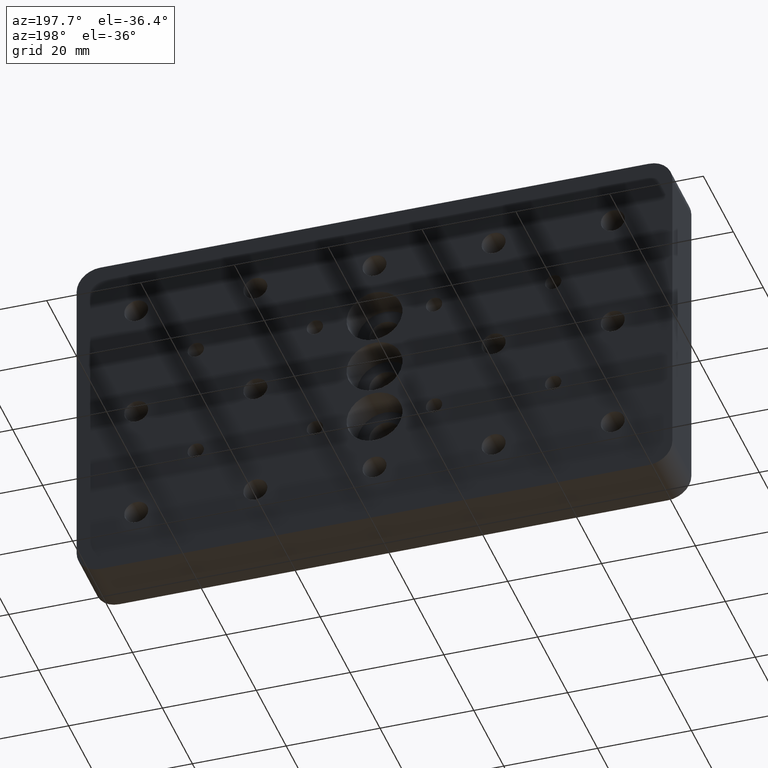
[diagram: clean part render]
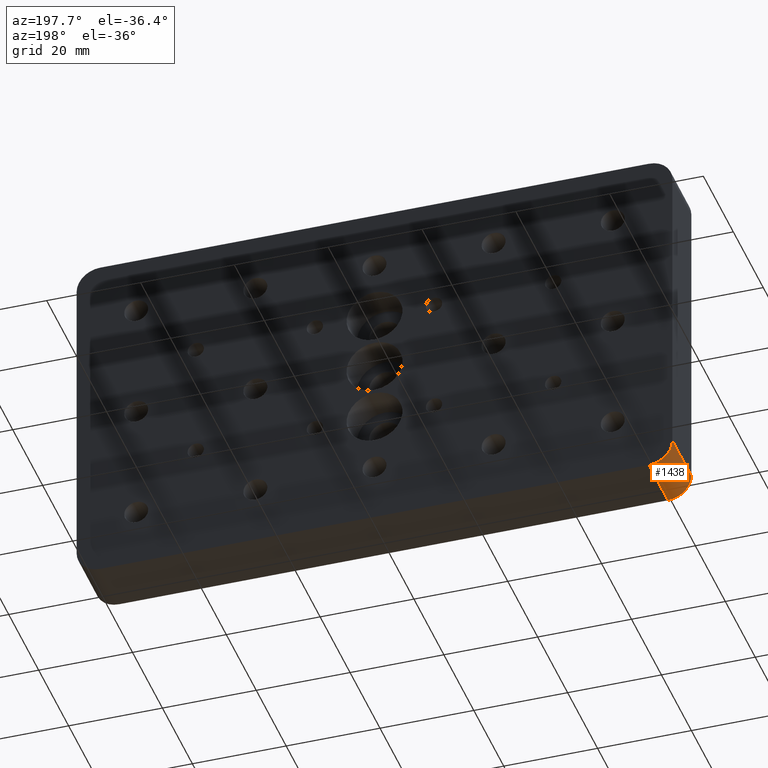
[diagram: same view with one face highlighted and labeled with its STEP entity id]
A machine part, auxiliary view. The second image highlights one B-rep face of the part: STEP entity #1438.
In plain terms, the highlighted cylindrical surface (edge-blend (fillet) strip) has radius 5 mm, axis along (0, -1, 0).
Its self-contained STEP definition (entity closure, byte-faithful):
#8 = ORIENTED_EDGE ( 'NONE', *, *, #1330, .F. ) ;
#62 = CARTESIAN_POINT ( 'NONE',  ( -58.50000000000000000, 6.349999999999999600, -38.00000000000000000 ) ) ;
#278 = EDGE_LOOP ( 'NONE', ( #753, #1995, #8, #1772 ) ) ;
#377 = CARTESIAN_POINT ( 'NONE',  ( -58.50000000000000000, 6.349999999999999600, -33.00000000000000000 ) ) ;
#413 = CIRCLE ( 'NONE', #1549, 5.000000000000000900 ) ;
#422 = VERTEX_POINT ( 'NONE', #761 ) ;
#565 = AXIS2_PLACEMENT_3D ( 'NONE', #377, #1861, #567 ) ;
#567 = DIRECTION ( 'NONE',  ( 0.0000000000000000000, 0.0000000000000000000, -1.000000000000000000 ) ) ;
#570 = VECTOR ( 'NONE', #1972, 1000.000000000000000 ) ;
#665 = CARTESIAN_POINT ( 'NONE',  ( -63.50000000000000000, 6.349999999999999600, -33.00000000000000000 ) ) ;
#710 = LINE ( 'NONE', #665, #1593 ) ;
#750 = EDGE_CURVE ( 'NONE', #900, #1110, #710, .T. ) ;
#753 = ORIENTED_EDGE ( 'NONE', *, *, #860, .F. ) ;
#761 = CARTESIAN_POINT ( 'NONE',  ( -58.50000000000000000, 6.349999999999999600, -38.00000000000000000 ) ) ;
#773 = CARTESIAN_POINT ( 'NONE',  ( -58.50000000000000000, -6.349999999999999600, -38.00000000000000000 ) ) ;
#846 = DIRECTION ( 'NONE',  ( 0.0000000000000000000, -1.000000000000000000, 0.0000000000000000000 ) ) ;
#860 = EDGE_CURVE ( 'NONE', #422, #900, #1153, .T. ) ;
#900 = VERTEX_POINT ( 'NONE', #2075 ) ;
#1069 = DIRECTION ( 'NONE',  ( -0.0000000000000000000, -1.000000000000000000, -0.0000000000000000000 ) ) ;
#1110 = VERTEX_POINT ( 'NONE', #2121 ) ;
#1153 = CIRCLE ( 'NONE', #2228, 5.000000000000000900 ) ;
#1242 = CARTESIAN_POINT ( 'NONE',  ( -58.50000000000000000, -6.349999999999999600, -33.00000000000000000 ) ) ;
#1275 = DIRECTION ( 'NONE',  ( 0.0000000000000000000, 1.000000000000000000, 0.0000000000000000000 ) ) ;
#1330 = EDGE_CURVE ( 'NONE', #1110, #2064, #413, .T. ) ;
#1438 = ADVANCED_FACE ( 'NONE', ( #2072 ), #2040, .T. ) ;
#1549 = AXIS2_PLACEMENT_3D ( 'NONE', #1242, #1069, #2229 ) ;
#1593 = VECTOR ( 'NONE', #846, 1000.000000000000000 ) ;
#1603 = LINE ( 'NONE', #62, #570 ) ;
#1617 = DIRECTION ( 'NONE',  ( 0.0000000000000000000, 0.0000000000000000000, 1.000000000000000000 ) ) ;
#1772 = ORIENTED_EDGE ( 'NONE', *, *, #750, .F. ) ;
#1773 = EDGE_CURVE ( 'NONE', #2064, #422, #1603, .T. ) ;
#1861 = DIRECTION ( 'NONE',  ( 0.0000000000000000000, -1.000000000000000000, 0.0000000000000000000 ) ) ;
#1972 = DIRECTION ( 'NONE',  ( -0.0000000000000000000, 1.000000000000000000, -0.0000000000000000000 ) ) ;
#1995 = ORIENTED_EDGE ( 'NONE', *, *, #1773, .F. ) ;
#2040 = CYLINDRICAL_SURFACE ( 'NONE', #565, 4.999999999999997300 ) ;
#2064 = VERTEX_POINT ( 'NONE', #773 ) ;
#2072 = FACE_OUTER_BOUND ( 'NONE', #278, .T. ) ;
#2075 = CARTESIAN_POINT ( 'NONE',  ( -63.50000000000000000, 6.349999999999999600, -33.00000000000000000 ) ) ;
#2121 = CARTESIAN_POINT ( 'NONE',  ( -63.50000000000000000, -6.349999999999999600, -33.00000000000000000 ) ) ;
#2224 = CARTESIAN_POINT ( 'NONE',  ( -58.50000000000000000, 6.349999999999999600, -33.00000000000000000 ) ) ;
#2228 = AXIS2_PLACEMENT_3D ( 'NONE', #2224, #1275, #1617 ) ;
#2229 = DIRECTION ( 'NONE',  ( 0.0000000000000000000, 0.0000000000000000000, 1.000000000000000000 ) ) ;